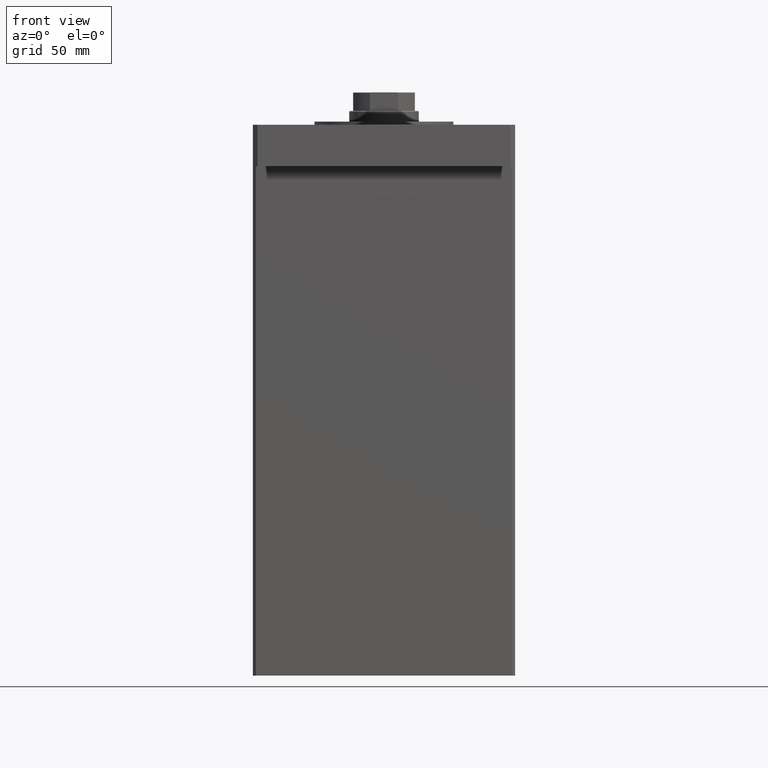
[diagram: clean part render]
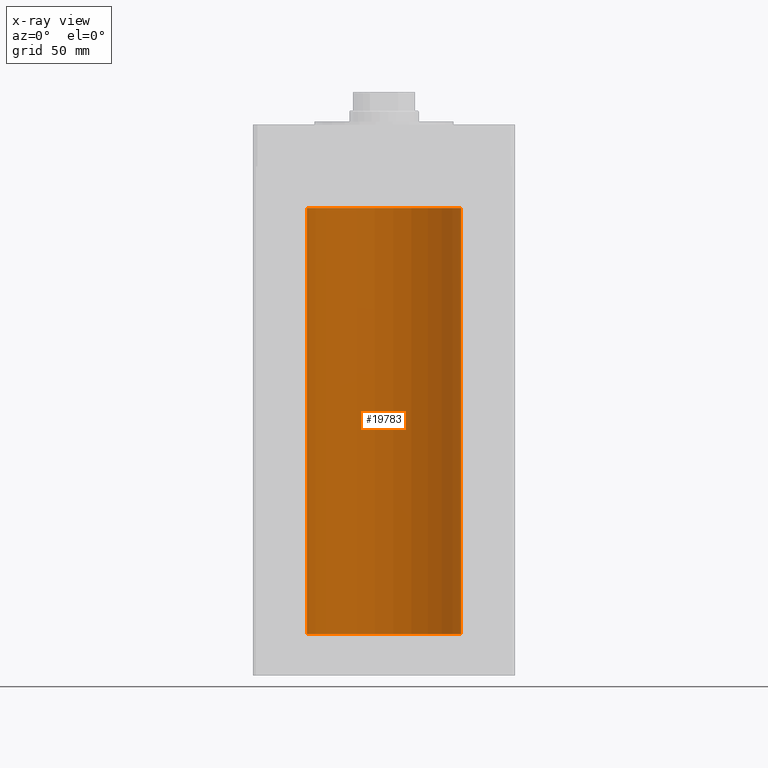
[diagram: x-ray — body ghosted, one internal face saturated and labeled with its STEP entity id]
A machine part, front view, then the same camera in x-ray: the body is ghosted and one INTERNAL B-rep face — a face not visible from any outside direction — is saturated and labeled: STEP entity #19783.
In plain terms, the highlighted cylindrical surface (partial cylindrical patch) has radius 50 mm, axis along (-0, -0, -1).
Its self-contained STEP definition (entity closure, byte-faithful):
#307 = EDGE_CURVE ( 'NONE', #49485, #28756, #15488, .T. ) ;
#719 = VECTOR ( 'NONE', #47783, 1000.000000000000000 ) ;
#1574 = CARTESIAN_POINT ( 'NONE',  ( 0.000000000000000000, 0.000000000000000000, 276.0000000000000000 ) ) ;
#2581 = EDGE_CURVE ( 'NONE', #3101, #49485, #39582, .T. ) ;
#3101 = VERTEX_POINT ( 'NONE', #45367 ) ;
#6715 = CARTESIAN_POINT ( 'NONE',  ( 0.000000000000000000, 0.000000000000000000, 276.0000000000000000 ) ) ;
#9165 = DIRECTION ( 'NONE',  ( -0.000000000000000000, -0.000000000000000000, -1.000000000000000000 ) ) ;
#10296 = AXIS2_PLACEMENT_3D ( 'NONE', #27791, #44035, #32647 ) ;
#10378 = VECTOR ( 'NONE', #44166, 1000.000000000000000 ) ;
#10996 = CIRCLE ( 'NONE', #41261, 50.00000000000000000 ) ;
#14855 = DIRECTION ( 'NONE',  ( 1.000000000000000000, 0.000000000000000000, 0.000000000000000000 ) ) ;
#15488 = CIRCLE ( 'NONE', #10296, 50.00000000000000000 ) ;
#17221 = ORIENTED_EDGE ( 'NONE', *, *, #42125, .T. ) ;
#19453 = EDGE_LOOP ( 'NONE', ( #29200, #47335, #17221, #53569 ) ) ;
#19624 = CARTESIAN_POINT ( 'NONE',  ( -50.00000000000000000, 0.000000000000000000, 276.0000000000000000 ) ) ;
#19783 = ADVANCED_FACE ( 'NONE', ( #22177 ), #38682, .F. ) ;
#21908 = DIRECTION ( 'NONE',  ( -1.000000000000000000, 0.000000000000000000, 0.000000000000000000 ) ) ;
#22177 = FACE_OUTER_BOUND ( 'NONE', #19453, .T. ) ;
#27663 = CARTESIAN_POINT ( 'NONE',  ( 50.00000000000000000, 6.123233995736766085E-15, 276.0000000000000000 ) ) ;
#27791 = CARTESIAN_POINT ( 'NONE',  ( 0.000000000000000000, 0.000000000000000000, 0.000000000000000000 ) ) ;
#28700 = CARTESIAN_POINT ( 'NONE',  ( -50.00000000000000000, 0.000000000000000000, 276.0000000000000000 ) ) ;
#28756 = VERTEX_POINT ( 'NONE', #38429 ) ;
#29200 = ORIENTED_EDGE ( 'NONE', *, *, #2581, .F. ) ;
#29836 = EDGE_CURVE ( 'NONE', #3101, #50479, #10996, .T. ) ;
#32647 = DIRECTION ( 'NONE',  ( 1.000000000000000000, 0.000000000000000000, 0.000000000000000000 ) ) ;
#38429 = CARTESIAN_POINT ( 'NONE',  ( -50.00000000000000000, 0.000000000000000000, 0.000000000000000000 ) ) ;
#38682 = CYLINDRICAL_SURFACE ( 'NONE', #47210, 50.00000000000000000 ) ;
#39582 = LINE ( 'NONE', #27663, #10378 ) ;
#41261 = AXIS2_PLACEMENT_3D ( 'NONE', #6715, #51951, #14855 ) ;
#42125 = EDGE_CURVE ( 'NONE', #50479, #28756, #43448, .T. ) ;
#43448 = LINE ( 'NONE', #19624, #719 ) ;
#44035 = DIRECTION ( 'NONE',  ( -0.000000000000000000, 0.000000000000000000, 1.000000000000000000 ) ) ;
#44166 = DIRECTION ( 'NONE',  ( -0.000000000000000000, -0.000000000000000000, -1.000000000000000000 ) ) ;
#44416 = CARTESIAN_POINT ( 'NONE',  ( 50.00000000000000000, 6.123233995736766085E-15, 0.000000000000000000 ) ) ;
#45367 = CARTESIAN_POINT ( 'NONE',  ( 50.00000000000000000, 6.123233995736766085E-15, 276.0000000000000000 ) ) ;
#47210 = AXIS2_PLACEMENT_3D ( 'NONE', #1574, #9165, #21908 ) ;
#47335 = ORIENTED_EDGE ( 'NONE', *, *, #29836, .T. ) ;
#47783 = DIRECTION ( 'NONE',  ( -0.000000000000000000, -0.000000000000000000, -1.000000000000000000 ) ) ;
#49485 = VERTEX_POINT ( 'NONE', #44416 ) ;
#50479 = VERTEX_POINT ( 'NONE', #28700 ) ;
#51951 = DIRECTION ( 'NONE',  ( -0.000000000000000000, 0.000000000000000000, 1.000000000000000000 ) ) ;
#53569 = ORIENTED_EDGE ( 'NONE', *, *, #307, .F. ) ;